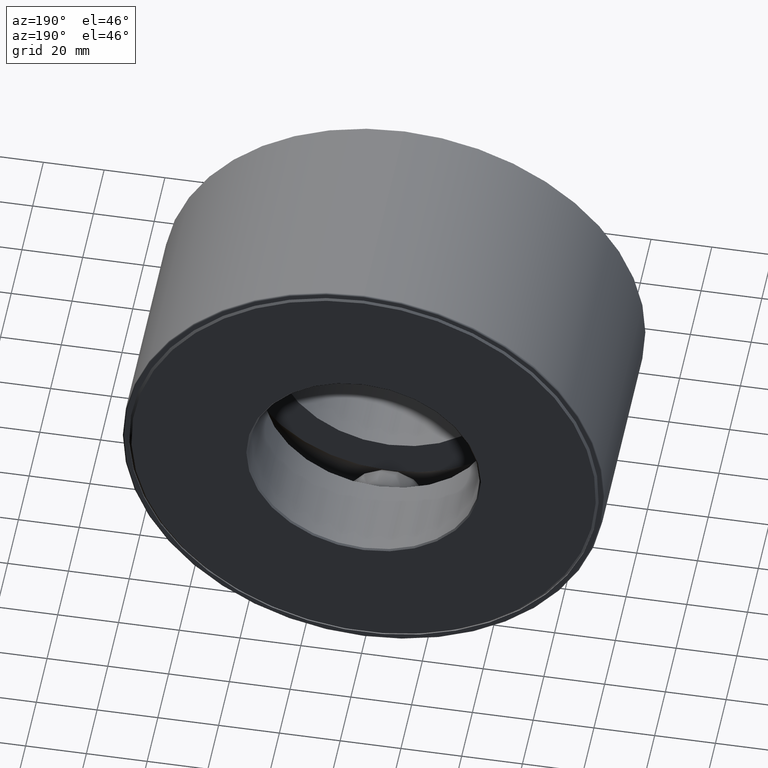
[diagram: clean part render]
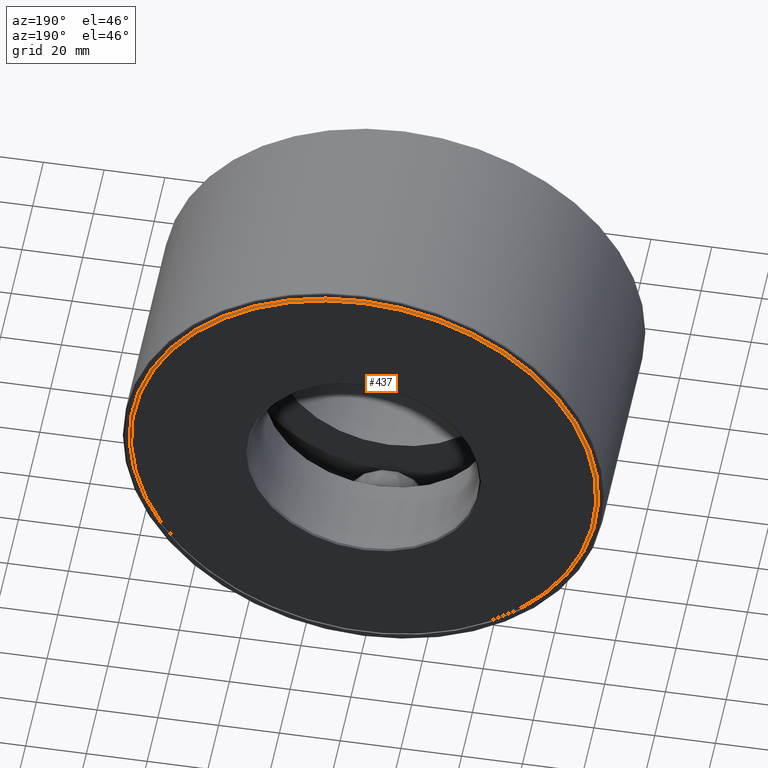
[diagram: same view with one face highlighted and labeled with its STEP entity id]
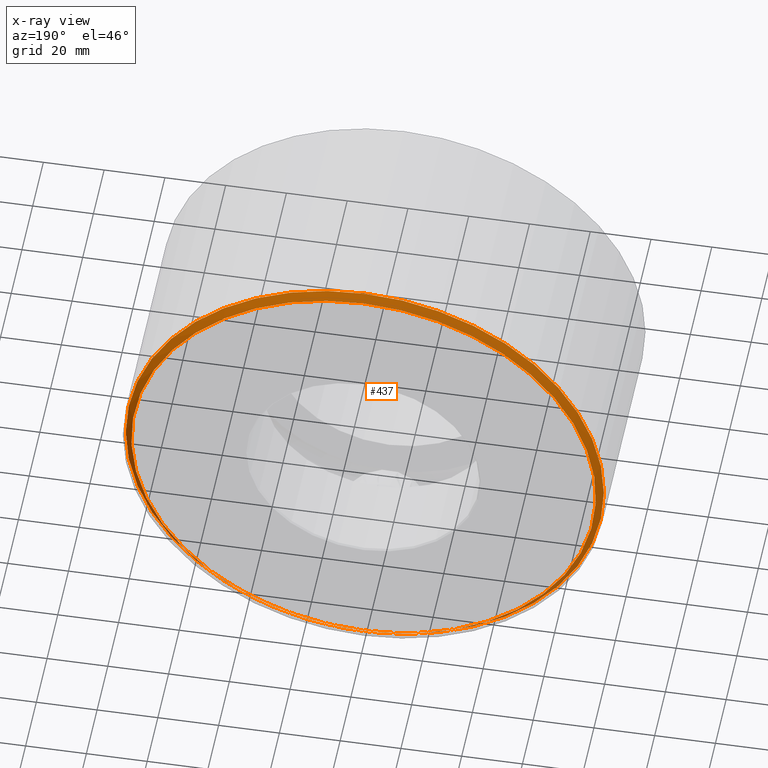
[diagram: x-ray of the same camera — body ghosted, the highlighted face saturated]
A machine part, auxiliary view. The second image highlights one B-rep face of the part: STEP entity #437.
The next image is the same camera in x-ray: the body ghosted, the highlighted face saturated — about 0% of this face is hidden behind the body in this view.
In plain terms, the highlighted conical surface has half-angle 45 deg.
Its self-contained STEP definition (entity closure, byte-faithful):
#6 = CARTESIAN_POINT ( 'NONE',  ( 0.0000000000000000000, 2.911999999999999900, 3.097999999999999400 ) ) ;
#7 = VERTEX_POINT ( 'NONE', #51 ) ;
#35 = DIRECTION ( 'NONE',  ( 0.0000000000000000000, 0.0000000000000000000, 1.000000000000000000 ) ) ;
#37 = FACE_BOUND ( 'NONE', #276, .T. ) ;
#51 = CARTESIAN_POINT ( 'NONE',  ( 0.0000000000000000000, 3.000000000000000400, 3.009999999999999800 ) ) ;
#94 = CIRCLE ( 'NONE', #464, 3.097999999999999400 ) ;
#127 = FACE_OUTER_BOUND ( 'NONE', #187, .T. ) ;
#158 = VERTEX_POINT ( 'NONE', #6 ) ;
#161 = CARTESIAN_POINT ( 'NONE',  ( 0.0000000000000000000, 2.911999999999999900, 0.0000000000000000000 ) ) ;
#173 = ORIENTED_EDGE ( 'NONE', *, *, #323, .F. ) ;
#187 = EDGE_LOOP ( 'NONE', ( #364 ) ) ;
#201 = DIRECTION ( 'NONE',  ( -0.0000000000000000000, 1.000000000000000000, -0.0000000000000000000 ) ) ;
#209 = DIRECTION ( 'NONE',  ( -0.0000000000000000000, 1.000000000000000000, -0.0000000000000000000 ) ) ;
#212 = DIRECTION ( 'NONE',  ( 0.0000000000000000000, -1.000000000000000000, 0.0000000000000000000 ) ) ;
#267 = CONICAL_SURFACE ( 'NONE', #347, 3.009999999999999800, 0.7853981633974450600 ) ;
#276 = EDGE_LOOP ( 'NONE', ( #173 ) ) ;
#277 = EDGE_CURVE ( 'NONE', #158, #158, #94, .T. ) ;
#323 = EDGE_CURVE ( 'NONE', #7, #7, #447, .T. ) ;
#347 = AXIS2_PLACEMENT_3D ( 'NONE', #402, #212, #450 ) ;
#364 = ORIENTED_EDGE ( 'NONE', *, *, #277, .T. ) ;
#393 = DIRECTION ( 'NONE',  ( 0.0000000000000000000, 0.0000000000000000000, 1.000000000000000000 ) ) ;
#402 = CARTESIAN_POINT ( 'NONE',  ( 0.0000000000000000000, 3.000000000000000400, 0.0000000000000000000 ) ) ;
#437 = ADVANCED_FACE ( 'NONE', ( #127, #37 ), #267, .T. ) ;
#447 = CIRCLE ( 'NONE', #596, 3.009999999999999800 ) ;
#450 = DIRECTION ( 'NONE',  ( 0.0000000000000000000, 0.0000000000000000000, -1.000000000000000000 ) ) ;
#464 = AXIS2_PLACEMENT_3D ( 'NONE', #161, #201, #35 ) ;
#545 = CARTESIAN_POINT ( 'NONE',  ( 0.0000000000000000000, 3.000000000000000400, 0.0000000000000000000 ) ) ;
#596 = AXIS2_PLACEMENT_3D ( 'NONE', #545, #209, #393 ) ;